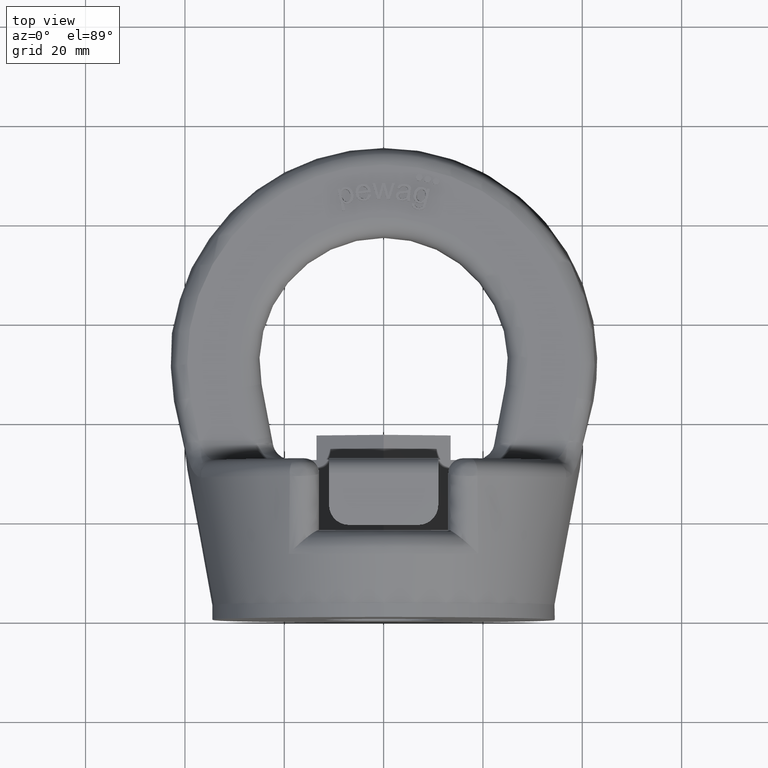
[diagram: clean part render]
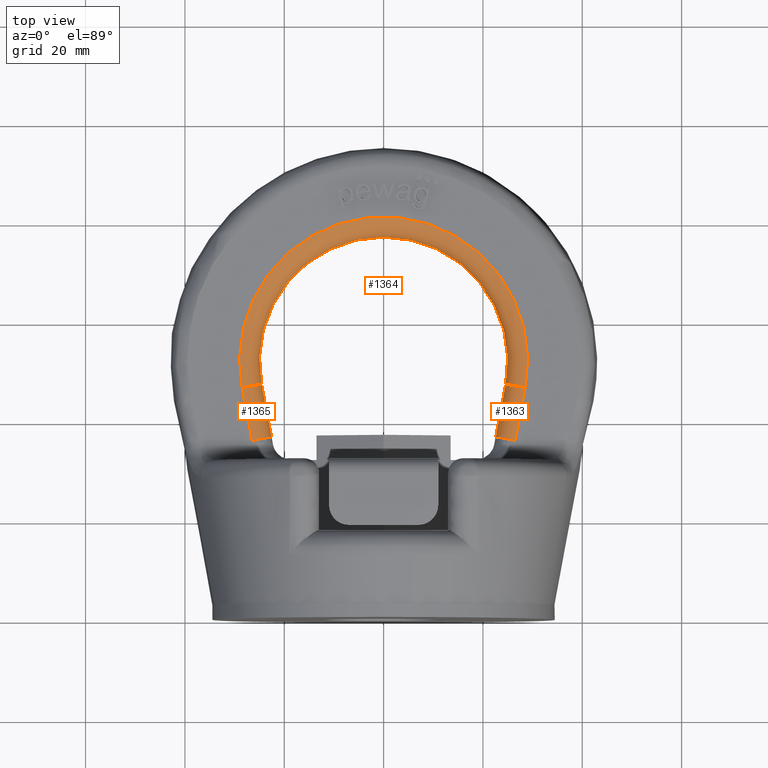
[diagram: same view with one multi-face feature highlighted, each face labeled with its STEP entity id]
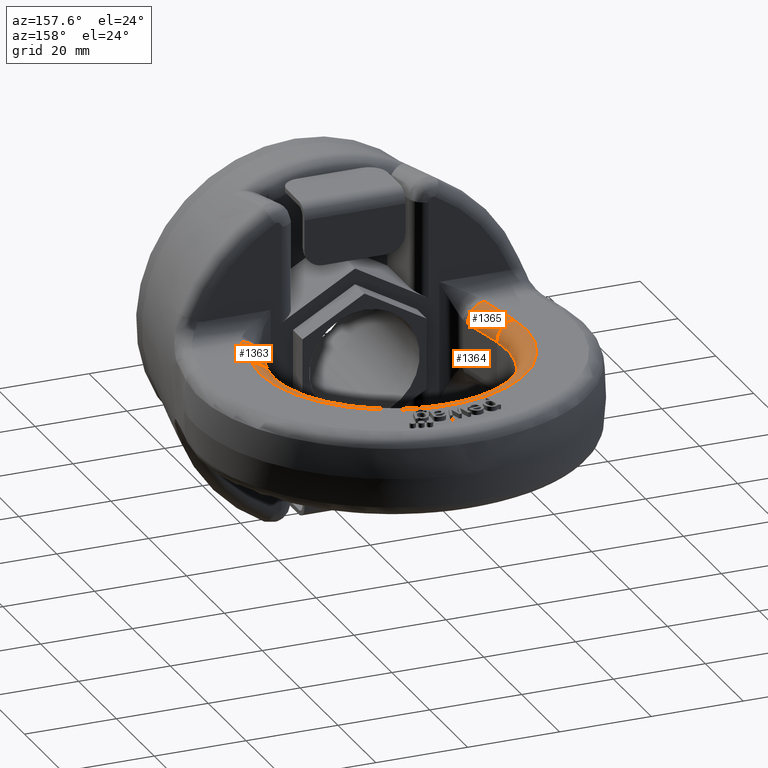
[diagram: same view with one multi-face feature highlighted, each face labeled with its STEP entity id]
A machine part, top view. The highlighted faces form ONE feature: a constant-radius fillet chain: 3 tangent blend faces with common blend radius 4 mm. The faces share edges in the B-rep.
A second angle (auxiliary view) of the same feature is appended — it is thin or edge-on in the first view.
Their STEP definitions:
[1] entity #1364 (Torus):
#1018=TOROIDAL_SURFACE('',#5186,29.,4.);
#1139=FACE_OUTER_BOUND('',#1883,.T.);
#1364=ADVANCED_FACE('',(#1139),#1018,.T.);
#1679=CIRCLE('',#5104,29.);
#1693=CIRCLE('',#5124,25.);
#1714=CIRCLE('',#5183,4.);
#1715=CIRCLE('',#5185,4.);
#1883=EDGE_LOOP('',(#2963,#2964,#2965,#2966));
#2963=ORIENTED_EDGE('',*,*,#4430,.T.);
#2964=ORIENTED_EDGE('',*,*,#4286,.F.);
#2965=ORIENTED_EDGE('',*,*,#4431,.F.);
#2966=ORIENTED_EDGE('',*,*,#4346,.F.);
#3902=VERTEX_POINT('',#6400);
#3903=VERTEX_POINT('',#6401);
#3958=VERTEX_POINT('',#6691);
#3959=VERTEX_POINT('',#6693);
#4286=EDGE_CURVE('',#3902,#3903,#1679,.T.);
#4346=EDGE_CURVE('',#3958,#3959,#1693,.T.);
#4430=EDGE_CURVE('',#3958,#3903,#1714,.T.);
#4431=EDGE_CURVE('',#3959,#3902,#1715,.T.);
#5104=AXIS2_PLACEMENT_3D('',#6399,#5399,#5400);
#5124=AXIS2_PLACEMENT_3D('',#6692,#5459,#5460);
#5183=AXIS2_PLACEMENT_3D('',#7186,#5616,#5617);
#5185=AXIS2_PLACEMENT_3D('',#7188,#5620,#5621);
#5186=AXIS2_PLACEMENT_3D('',#7189,#5622,#5623);
#5399=DIRECTION('',(0.,-1.18816676436768E-16,-1.));
#5400=DIRECTION('',(0.,1.,-1.19636101791504E-16));
#5459=DIRECTION('',(0.,1.18816676436768E-16,1.));
#5460=DIRECTION('',(0.,1.,-1.04083408558608E-16));
#5616=DIRECTION('',(0.1857182715552,0.982603034602758,-4.83254768376962E-16));
#5617=DIRECTION('',(-0.982603034602758,0.1857182715552,0.));
#5620=DIRECTION('',(0.1857182715552,-0.982603034602758,-1.61084922792321E-16));
#5621=DIRECTION('',(0.982603034602758,0.1857182715552,0.));
#5622=DIRECTION('',(0.,-1.18816676436768E-16,-1.));
#5623=DIRECTION('',(0.,1.,-1.31418445149758E-16));
#6399=CARTESIAN_POINT('',(3.19803995620443E-17,52.,9.00000000000001));
#6400=CARTESIAN_POINT('',(-28.49548800348,46.6141701248992,9.00000000000001));
#6401=CARTESIAN_POINT('',(28.49548800348,46.6141701248992,9.00000000000001));
#6691=CARTESIAN_POINT('',(24.5650758650689,47.35704321112,5.00000000000001));
#6692=CARTESIAN_POINT('',(3.19803995620443E-17,52.,5.00000000000001));
#6693=CARTESIAN_POINT('',(-24.5650758650689,47.35704321112,5.));
#7186=CARTESIAN_POINT('',(28.49548800348,46.6141701248992,5.00000000000001));
#7188=CARTESIAN_POINT('',(-28.49548800348,46.6141701248992,5.00000000000001));
#7189=CARTESIAN_POINT('',(3.19803995620443E-17,52.,5.00000000000001));
[2] entity #1365 (Cylinder):
#1078=CYLINDRICAL_SURFACE('',#5188,4.);
#1140=FACE_OUTER_BOUND('',#1884,.T.);
#1365=ADVANCED_FACE('',(#1140),#1078,.T.);
#1715=CIRCLE('',#5185,4.);
#1716=CIRCLE('',#5187,4.);
#1884=EDGE_LOOP('',(#2967,#2968,#2969,#2970));
#2123=LINE('',#6420,#2393);
#2141=LINE('',#6698,#2411);
#2393=VECTOR('',#5406,1.);
#2411=VECTOR('',#5466,1.);
#2967=ORIENTED_EDGE('',*,*,#4431,.T.);
#2968=ORIENTED_EDGE('',*,*,#4293,.F.);
#2969=ORIENTED_EDGE('',*,*,#4432,.F.);
#2970=ORIENTED_EDGE('',*,*,#4349,.F.);
#3902=VERTEX_POINT('',#6400);
#3909=VERTEX_POINT('',#6419);
#3959=VERTEX_POINT('',#6693);
#3961=VERTEX_POINT('',#6699);
#4293=EDGE_CURVE('',#3909,#3902,#2123,.T.);
#4349=EDGE_CURVE('',#3959,#3961,#2141,.T.);
#4431=EDGE_CURVE('',#3959,#3902,#1715,.T.);
#4432=EDGE_CURVE('',#3961,#3909,#1716,.T.);
#5185=AXIS2_PLACEMENT_3D('',#7188,#5620,#5621);
#5187=AXIS2_PLACEMENT_3D('',#7190,#5624,#5625);
#5188=AXIS2_PLACEMENT_3D('',#7191,#5626,#5627);
#5406=DIRECTION('',(-0.185718271555201,0.982603034602758,-1.16749626828182E-16));
#5466=DIRECTION('',(0.185718271555201,-0.982603034602758,1.16749626828182E-16));
#5620=DIRECTION('',(0.1857182715552,-0.982603034602758,-1.61084922792321E-16));
#5621=DIRECTION('',(0.982603034602758,0.1857182715552,0.));
#5624=DIRECTION('',(0.1857182715552,-0.982603034602758,-4.83254768376962E-16));
#5625=DIRECTION('',(0.982603034602758,0.1857182715552,0.));
#5626=DIRECTION('',(0.185718271555201,-0.982603034602758,1.16749626828182E-16));
#5627=DIRECTION('',(0.982603034602758,0.1857182715552,0.));
#6400=CARTESIAN_POINT('',(-28.49548800348,46.6141701248992,9.00000000000001));
#6419=CARTESIAN_POINT('',(-26.4893418181224,36.,9.00000000000001));
#6420=CARTESIAN_POINT('',(-28.49548800348,46.6141701248992,9.00000000000001));
#6693=CARTESIAN_POINT('',(-24.5650758650689,47.35704321112,5.));
#6698=CARTESIAN_POINT('',(-22.4185219049546,36.,5.00000000000001));
#6699=CARTESIAN_POINT('',(-22.5589296797113,36.7428730862208,5.00000000000001));
#7188=CARTESIAN_POINT('',(-28.49548800348,46.6141701248992,5.00000000000001));
#7190=CARTESIAN_POINT('',(-26.4893418181224,36.,5.00000000000001));
#7191=CARTESIAN_POINT('',(-36.6152094381546,89.5742023017489,5.));
[3] entity #1363 (Cylinder):
#1077=CYLINDRICAL_SURFACE('',#5184,4.);
#1138=FACE_OUTER_BOUND('',#1882,.T.);
#1363=ADVANCED_FACE('',(#1138),#1077,.T.);
#1713=CIRCLE('',#5182,4.);
#1714=CIRCLE('',#5183,4.);
#1882=EDGE_LOOP('',(#2959,#2960,#2961,#2962));
#2120=LINE('',#6402,#2390);
#2165=LINE('',#6848,#2435);
#2390=VECTOR('',#5401,1.);
#2435=VECTOR('',#5508,1.);
#2959=ORIENTED_EDGE('',*,*,#4429,.T.);
#2960=ORIENTED_EDGE('',*,*,#4287,.F.);
#2961=ORIENTED_EDGE('',*,*,#4430,.F.);
#2962=ORIENTED_EDGE('',*,*,#4384,.F.);
#3903=VERTEX_POINT('',#6401);
#3904=VERTEX_POINT('',#6403);
#3958=VERTEX_POINT('',#6691);
#3995=VERTEX_POINT('',#6847);
#4287=EDGE_CURVE('',#3903,#3904,#2120,.T.);
#4384=EDGE_CURVE('',#3995,#3958,#2165,.T.);
#4429=EDGE_CURVE('',#3995,#3904,#1713,.T.);
#4430=EDGE_CURVE('',#3958,#3903,#1714,.T.);
#5182=AXIS2_PLACEMENT_3D('',#7173,#5614,#5615);
#5183=AXIS2_PLACEMENT_3D('',#7186,#5616,#5617);
#5184=AXIS2_PLACEMENT_3D('',#7187,#5618,#5619);
#5401=DIRECTION('',(-0.185718271555201,-0.982603034602758,1.16749626828182E-16));
#5508=DIRECTION('',(0.185718271555201,0.982603034602758,-1.16749626828182E-16));
#5614=DIRECTION('',(0.1857182715552,0.982603034602758,0.));
#5615=DIRECTION('',(-0.982603034602758,0.1857182715552,0.));
#5616=DIRECTION('',(0.1857182715552,0.982603034602758,-4.83254768376962E-16));
#5617=DIRECTION('',(-0.982603034602758,0.1857182715552,0.));
#5618=DIRECTION('',(0.185718271555201,0.982603034602758,-1.16749626828182E-16));
#5619=DIRECTION('',(-0.982603034602758,0.1857182715552,0.));
#6401=CARTESIAN_POINT('',(28.49548800348,46.6141701248992,9.00000000000001));
#6402=CARTESIAN_POINT('',(26.3489340433656,35.2571269137792,9.00000000000001));
#6403=CARTESIAN_POINT('',(26.4893418181224,36.,9.00000000000001));
#6691=CARTESIAN_POINT('',(24.5650758650689,47.35704321112,5.00000000000001));
#6847=CARTESIAN_POINT('',(22.5589296797113,36.7428730862208,5.00000000000001));
#6848=CARTESIAN_POINT('',(24.5650758650689,47.35704321112,5.00000000000001));
#7173=CARTESIAN_POINT('',(26.4893418181224,36.,5.));
#7186=CARTESIAN_POINT('',(28.49548800348,46.6141701248992,5.00000000000001));
#7187=CARTESIAN_POINT('',(39.7194243132052,105.998062650768,5.));